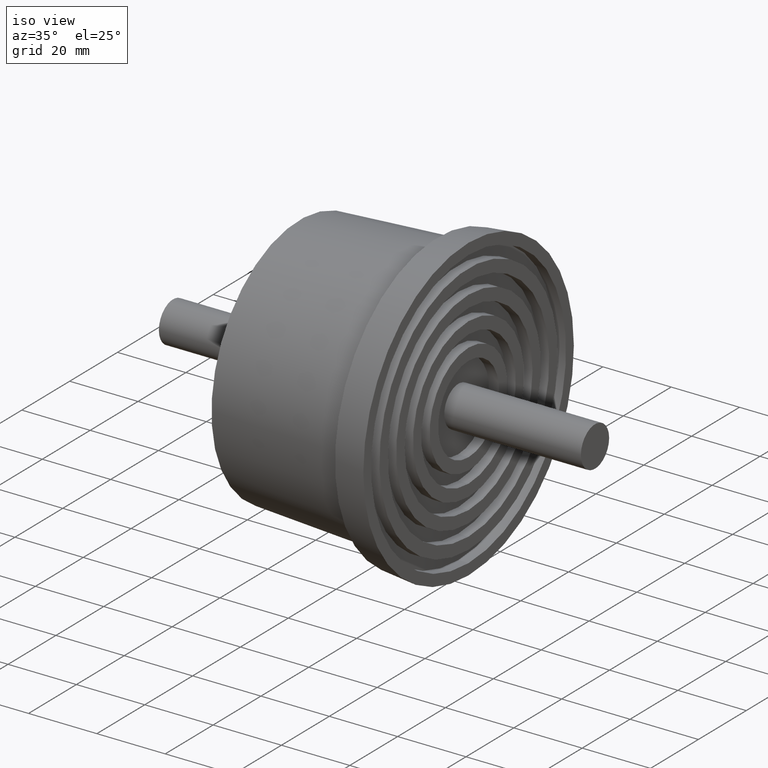
[diagram: clean part render]
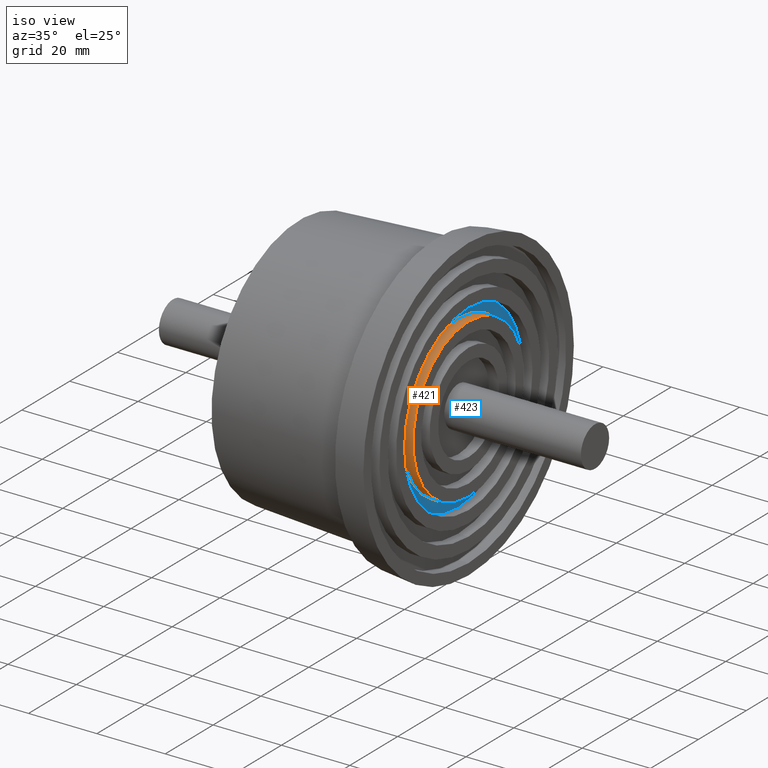
[diagram: same view with the hole feature highlighted: cylindrical wall and planar end face, labeled with their STEP entity ids]
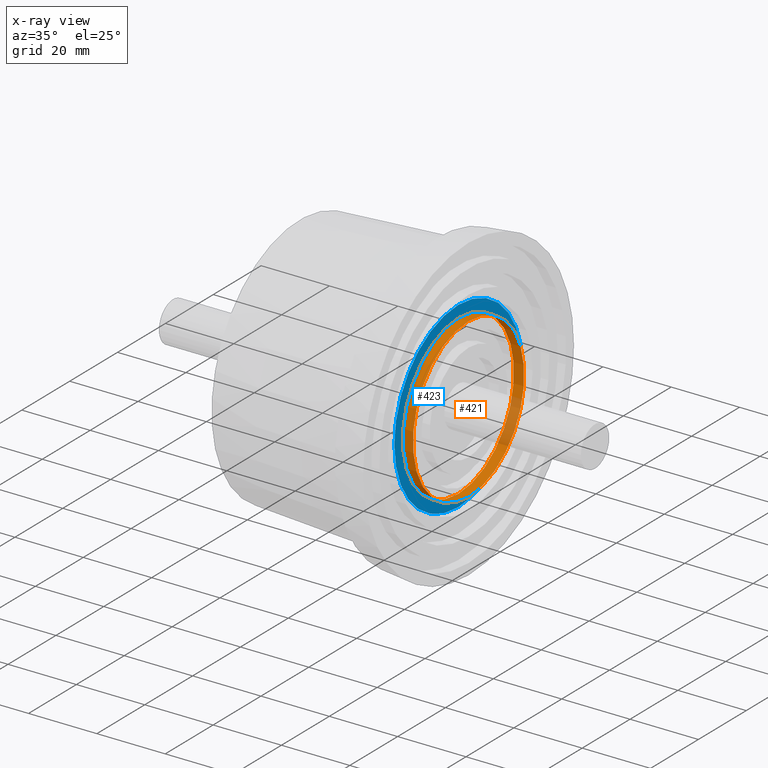
[diagram: x-ray of the same camera — body ghosted, the hole faces saturated]
A machine part, iso view. The highlighted faces form one hole feature of diameter 46.5 mm: the cylindrical wall (entity #421, orange) and its adjacent planar end face (entity #423, blue) — they share a circular edge in the B-rep.
The next image is the same camera in x-ray (body ghosted, the hole faces saturated) — the bore reads through the body.
Wall:
#43=FACE_BOUND('',#129,.T.);
#82=FACE_OUTER_BOUND('',#128,.T.);
#128=EDGE_LOOP('',(#328));
#129=EDGE_LOOP('',(#329));
#205=CIRCLE('',#472,23.25);
#206=CIRCLE('',#473,23.25);
#245=VERTEX_POINT('',#725);
#246=VERTEX_POINT('',#727);
#285=EDGE_CURVE('',#245,#245,#205,.T.);
#286=EDGE_CURVE('',#246,#246,#206,.T.);
#328=ORIENTED_EDGE('',*,*,#285,.T.);
#329=ORIENTED_EDGE('',*,*,#286,.F.);
#401=CYLINDRICAL_SURFACE('',#471,23.25);
#421=ADVANCED_FACE('',(#82,#43),#401,.T.);
#471=AXIS2_PLACEMENT_3D('',#724,#566,#567);
#472=AXIS2_PLACEMENT_3D('',#726,#568,#569);
#473=AXIS2_PLACEMENT_3D('',#728,#570,#571);
#566=DIRECTION('center_axis',(-1.,-1.83697019872103E-16,0.));
#567=DIRECTION('ref_axis',(0.,0.,1.));
#568=DIRECTION('center_axis',(1.,1.83697019872103E-16,0.));
#569=DIRECTION('ref_axis',(0.,0.,1.));
#570=DIRECTION('center_axis',(1.,1.83697019872103E-16,0.));
#571=DIRECTION('ref_axis',(0.,0.,1.));
#724=CARTESIAN_POINT('Origin',(24.75,1.58897922189369E-14,0.));
#725=CARTESIAN_POINT('',(21.75,1.81860049673382E-14,-23.25));
#726=CARTESIAN_POINT('Origin',(21.75,1.53387011593206E-14,0.));
#727=CARTESIAN_POINT('',(24.75,1.87370960269545E-14,-23.25));
#728=CARTESIAN_POINT('Origin',(24.75,1.58897922189369E-14,0.));
End face:
#19=PLANE('',#477);
#45=FACE_BOUND('',#133,.T.);
#84=FACE_OUTER_BOUND('',#132,.T.);
#132=EDGE_LOOP('',(#332));
#133=EDGE_LOOP('',(#333));
#205=CIRCLE('',#472,23.25);
#207=CIRCLE('',#475,26.75);
#245=VERTEX_POINT('',#725);
#247=VERTEX_POINT('',#730);
#285=EDGE_CURVE('',#245,#245,#205,.T.);
#287=EDGE_CURVE('',#247,#247,#207,.T.);
#332=ORIENTED_EDGE('',*,*,#287,.F.);
#333=ORIENTED_EDGE('',*,*,#285,.F.);
#423=ADVANCED_FACE('',(#84,#45),#19,.F.);
#472=AXIS2_PLACEMENT_3D('',#726,#568,#569);
#475=AXIS2_PLACEMENT_3D('',#731,#574,#575);
#477=AXIS2_PLACEMENT_3D('',#734,#578,#579);
#568=DIRECTION('center_axis',(1.,1.83697019872103E-16,0.));
#569=DIRECTION('ref_axis',(0.,0.,1.));
#574=DIRECTION('center_axis',(-1.,-1.83697019872103E-16,0.));
#575=DIRECTION('ref_axis',(0.,0.,1.));
#578=DIRECTION('center_axis',(-1.,-1.83697019872103E-16,0.));
#579=DIRECTION('ref_axis',(0.,0.,1.));
#725=CARTESIAN_POINT('',(21.75,1.81860049673382E-14,-23.25));
#726=CARTESIAN_POINT('Origin',(21.75,1.53387011593206E-14,0.));
#730=CARTESIAN_POINT('',(21.75,1.86146313470398E-14,-26.75));
#731=CARTESIAN_POINT('Origin',(21.75,1.53387011593206E-14,0.));
#734=CARTESIAN_POINT('Origin',(21.75,1.53783802745697E-14,2.72994182309931E-16));